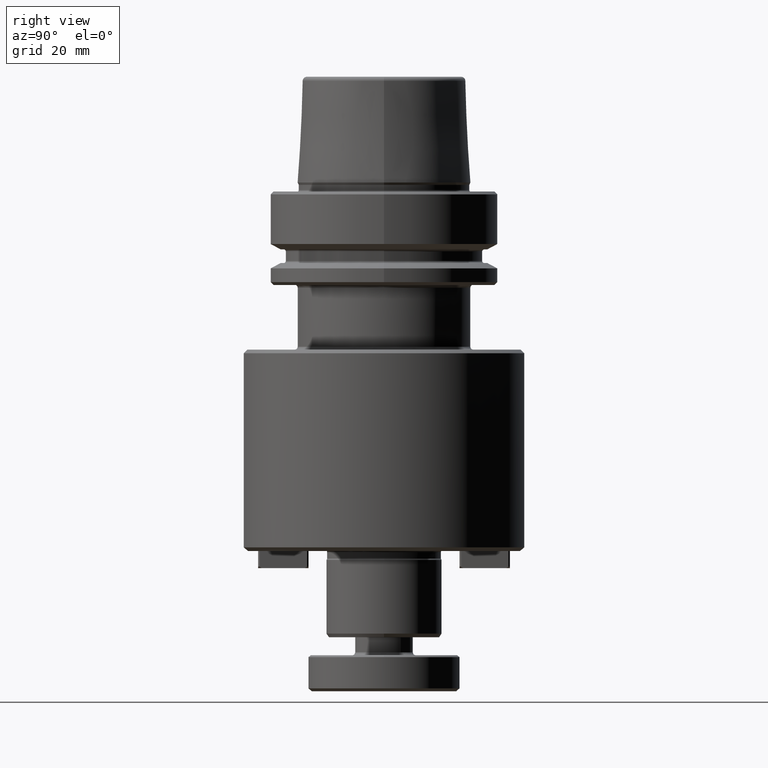
[diagram: clean part render]
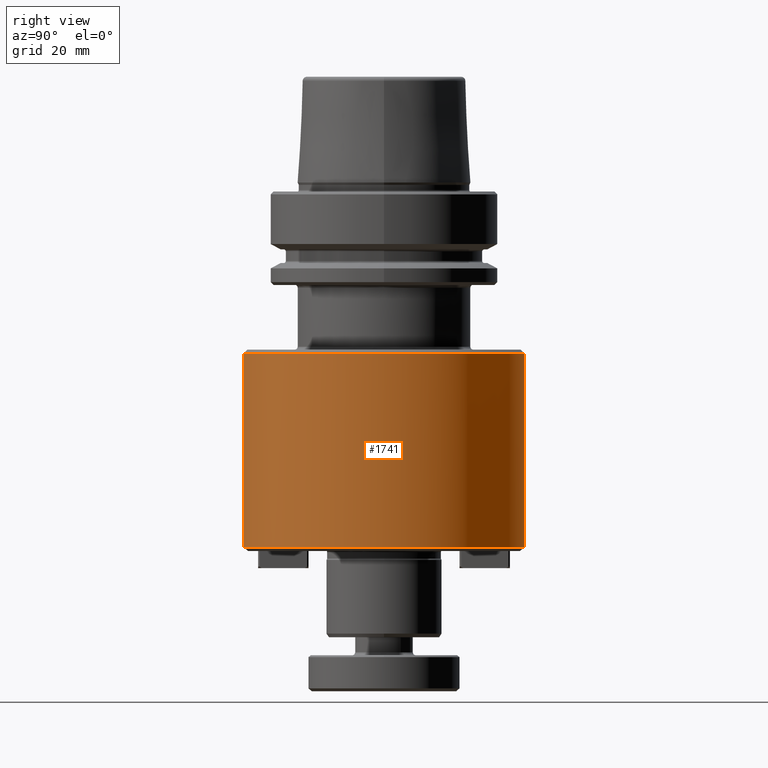
[diagram: same view with one face highlighted and labeled with its STEP entity id]
A machine part, right view. The second image highlights one B-rep face of the part: STEP entity #1741.
In plain terms, the highlighted cylindrical surface (partial cylindrical patch) has radius 39 mm, axis along (0, 0, -1).
Its self-contained STEP definition (entity closure, byte-faithful):
#109 = DIRECTION ( 'NONE',  ( 0.0000000000000000000, 1.000000000000000000, 0.0000000000000000000 ) ) ;
#166 = CARTESIAN_POINT ( 'NONE',  ( 4.776122516674677900E-015, -38.99999999999999300, -99.00000000000000000 ) ) ;
#170 = VECTOR ( 'NONE', #1278, 1000.000000000000000 ) ;
#362 = EDGE_LOOP ( 'NONE', ( #1742, #3002, #3016, #994, #1531 ) ) ;
#426 = DIRECTION ( 'NONE',  ( 0.0000000000000000000, 4.998558363866749900E-017, -1.000000000000000000 ) ) ;
#478 = AXIS2_PLACEMENT_3D ( 'NONE', #2396, #793, #2652 ) ;
#598 = DIRECTION ( 'NONE',  ( -0.0000000000000000000, -4.998558363866749900E-017, 1.000000000000000000 ) ) ;
#713 = CYLINDRICAL_SURFACE ( 'NONE', #1653, 39.00000000000000000 ) ;
#793 = DIRECTION ( 'NONE',  ( -0.0000000000000000000, -4.998558363866749900E-017, 1.000000000000000000 ) ) ;
#800 = CARTESIAN_POINT ( 'NONE',  ( 4.776122516674677100E-015, -38.99999999999999300, -45.00000000000001400 ) ) ;
#887 = VERTEX_POINT ( 'NONE', #2466 ) ;
#966 = DIRECTION ( 'NONE',  ( 0.0000000000000000000, 1.000000000000000000, 0.0000000000000000000 ) ) ;
#994 = ORIENTED_EDGE ( 'NONE', *, *, #2940, .T. ) ;
#1024 = CARTESIAN_POINT ( 'NONE',  ( 0.0000000000000000000, 39.00000000000000700, -124.0000000000000000 ) ) ;
#1091 = CARTESIAN_POINT ( 'NONE',  ( 0.0000000000000000000, 39.00000000000000700, -99.00000000000000000 ) ) ;
#1124 = CARTESIAN_POINT ( 'NONE',  ( 4.776122516674677900E-015, -38.99999999999999300, -124.0000000000000000 ) ) ;
#1275 = EDGE_CURVE ( 'NONE', #1716, #3343, #2990, .T. ) ;
#1278 = DIRECTION ( 'NONE',  ( 0.0000000000000000000, 4.998558363866749900E-017, -1.000000000000000000 ) ) ;
#1341 = EDGE_CURVE ( 'NONE', #2127, #887, #2051, .T. ) ;
#1375 = VERTEX_POINT ( 'NONE', #800 ) ;
#1531 = ORIENTED_EDGE ( 'NONE', *, *, #1275, .F. ) ;
#1559 = EDGE_CURVE ( 'NONE', #1375, #2127, #2715, .T. ) ;
#1653 = AXIS2_PLACEMENT_3D ( 'NONE', #2563, #426, #966 ) ;
#1706 = DIRECTION ( 'NONE',  ( 0.0000000000000000000, 4.998558363866749900E-017, -1.000000000000000000 ) ) ;
#1716 = VERTEX_POINT ( 'NONE', #3324 ) ;
#1741 = ADVANCED_FACE ( 'NONE', ( #2230 ), #713, .T. ) ;
#1742 = ORIENTED_EDGE ( 'NONE', *, *, #3037, .T. ) ;
#1886 = CIRCLE ( 'NONE', #2209, 39.00000000000000000 ) ;
#1936 = DIRECTION ( 'NONE',  ( 0.0000000000000000000, 4.998558363866749900E-017, -1.000000000000000000 ) ) ;
#2024 = VECTOR ( 'NONE', #1936, 1000.000000000000000 ) ;
#2051 = CIRCLE ( 'NONE', #478, 39.00000000000000000 ) ;
#2127 = VERTEX_POINT ( 'NONE', #166 ) ;
#2209 = AXIS2_PLACEMENT_3D ( 'NONE', #2219, #598, #2478 ) ;
#2219 = CARTESIAN_POINT ( 'NONE',  ( 0.0000000000000000000, 3.648947605622728300E-015, -99.00000000000000000 ) ) ;
#2230 = FACE_OUTER_BOUND ( 'NONE', #362, .T. ) ;
#2396 = CARTESIAN_POINT ( 'NONE',  ( 0.0000000000000000000, 3.648947605622728300E-015, -99.00000000000000000 ) ) ;
#2423 = CIRCLE ( 'NONE', #3072, 39.00000000000000000 ) ;
#2466 = CARTESIAN_POINT ( 'NONE',  ( 38.99999999999999300, 3.469446951953614200E-015, -99.00000000000000000 ) ) ;
#2478 = DIRECTION ( 'NONE',  ( 0.0000000000000000000, 1.000000000000000000, 0.0000000000000000000 ) ) ;
#2563 = CARTESIAN_POINT ( 'NONE',  ( 0.0000000000000000000, 4.898587196589415400E-015, -124.0000000000000000 ) ) ;
#2652 = DIRECTION ( 'NONE',  ( 0.0000000000000000000, 1.000000000000000000, 0.0000000000000000000 ) ) ;
#2715 = LINE ( 'NONE', #1124, #2024 ) ;
#2940 = EDGE_CURVE ( 'NONE', #887, #3343, #1886, .T. ) ;
#2990 = LINE ( 'NONE', #1024, #170 ) ;
#3002 = ORIENTED_EDGE ( 'NONE', *, *, #1559, .T. ) ;
#3016 = ORIENTED_EDGE ( 'NONE', *, *, #1341, .T. ) ;
#3037 = EDGE_CURVE ( 'NONE', #1716, #1375, #2423, .T. ) ;
#3072 = AXIS2_PLACEMENT_3D ( 'NONE', #3273, #1706, #109 ) ;
#3273 = CARTESIAN_POINT ( 'NONE',  ( 0.0000000000000000000, 9.497260891346833500E-016, -45.00000000000001400 ) ) ;
#3324 = CARTESIAN_POINT ( 'NONE',  ( 0.0000000000000000000, 38.99999999999999300, -45.00000000000001400 ) ) ;
#3343 = VERTEX_POINT ( 'NONE', #1091 ) ;